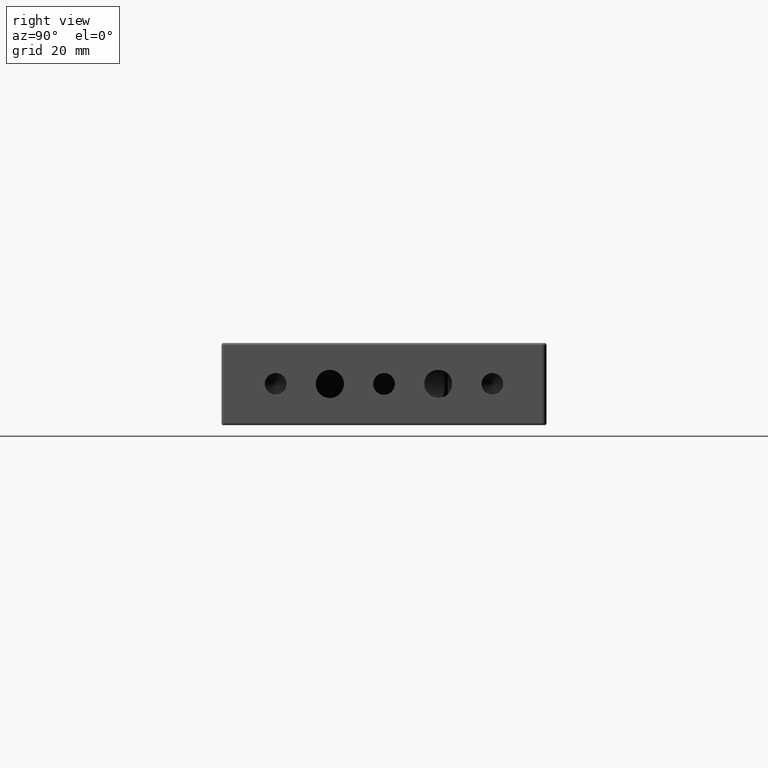
[diagram: clean part render]
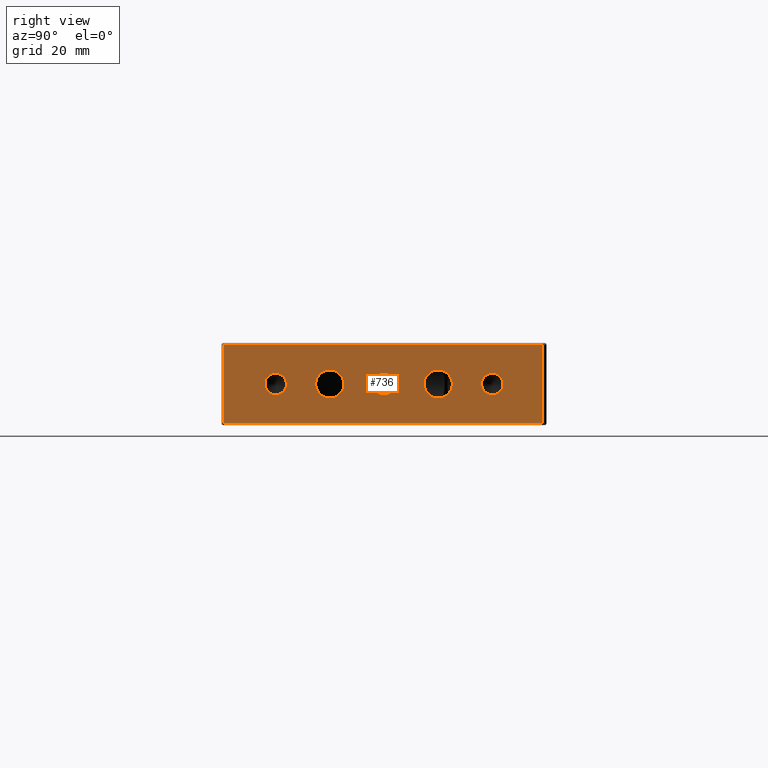
[diagram: same view with one face highlighted and labeled with its STEP entity id]
A machine part, right view. The second image highlights one B-rep face of the part: STEP entity #736.
In plain terms, the highlighted planar face has unit normal (-1, 0, 0).
Its self-contained STEP definition (entity closure, byte-faithful):
#125 = EDGE_CURVE ( 'NONE', #1267, #1266, #1376, .T. ) ;
#127 = EDGE_CURVE ( 'NONE', #1478, #1478, #922, .T. ) ;
#128 = EDGE_CURVE ( 'NONE', #1477, #1477, #919, .T. ) ;
#129 = EDGE_CURVE ( 'NONE', #1476, #1476, #918, .T. ) ;
#130 = EDGE_CURVE ( 'NONE', #1475, #1475, #917, .T. ) ;
#131 = EDGE_CURVE ( 'NONE', #1474, #1474, #916, .T. ) ;
#132 = EDGE_CURVE ( 'NONE', #1266, #1268, #920, .T. ) ;
#133 = EDGE_CURVE ( 'NONE', #1268, #1270, #921, .T. ) ;
#134 = EDGE_CURVE ( 'NONE', #1270, #1267, #913, .T. ) ;
#312 = DIRECTION ( 'NONE',  ( 0.0000000000000000000, 0.0000000000000000000, -1.000000000000000000 ) ) ;
#313 = DIRECTION ( 'NONE',  ( 1.000000000000000000, -0.0000000000000000000, -0.0000000000000000000 ) ) ;
#314 = CARTESIAN_POINT ( 'NONE',  ( 804.6671691626518200, 605.1374962495044700, 0.0000000000000000000 ) ) ;
#318 = CARTESIAN_POINT ( 'NONE',  ( 804.6671691626518200, 630.1374962495044700, 0.0000000000000000000 ) ) ;
#319 = CARTESIAN_POINT ( 'NONE',  ( 804.6671691626518200, 654.6374962495044700, -9.000000000000000000 ) ) ;
#321 = DIRECTION ( 'NONE',  ( -0.0000000000000000000, -0.0000000000000000000, -1.000000000000000000 ) ) ;
#322 = CARTESIAN_POINT ( 'NONE',  ( 804.6671691626518200, 580.6374962495044700, 9.500000000000000000 ) ) ;
#591 = DIRECTION ( 'NONE',  ( -1.000000000000000000, 0.0000000000000000000, 0.0000000000000000000 ) ) ;
#604 = PLANE ( 'NONE',  #665 ) ;
#605 = CARTESIAN_POINT ( 'NONE',  ( 804.6671691626518200, 654.6374962495044700, 9.500000000000000000 ) ) ;
#607 = DIRECTION ( 'NONE',  ( 0.0000000000000000000, 0.0000000000000000000, 1.000000000000000000 ) ) ;
#665 = AXIS2_PLACEMENT_3D ( 'NONE', #605, #591, #607 ) ;
#736 = ADVANCED_FACE ( 'NONE', ( #1661, #1657, #1660, #1658, #1659, #1656 ), #604, .F. ) ;
#810 = EDGE_LOOP ( 'NONE', ( #1160, #1159, #1158, #1157 ) ) ;
#911 = VECTOR ( 'NONE', #2088, 1000.000000000000000 ) ;
#913 = LINE ( 'NONE', #2079, #911 ) ;
#914 = VECTOR ( 'NONE', #2081, 1000.000000000000000 ) ;
#915 = VECTOR ( 'NONE', #2080, 1000.000000000000000 ) ;
#916 = CIRCLE ( 'NONE', #2021, 2.499999999999946700 ) ;
#917 = CIRCLE ( 'NONE', #2022, 2.499999999999946700 ) ;
#918 = CIRCLE ( 'NONE', #2023, 2.499999999999946700 ) ;
#919 = CIRCLE ( 'NONE', #2024, 3.249999999999975100 ) ;
#920 = LINE ( 'NONE', #319, #914 ) ;
#921 = LINE ( 'NONE', #2092, #915 ) ;
#922 = CIRCLE ( 'NONE', #2025, 3.249999999999975100 ) ;
#923 = VECTOR ( 'NONE', #321, 1000.000000000000000 ) ;
#1022 = EDGE_LOOP ( 'NONE', ( #1108 ) ) ;
#1108 = ORIENTED_EDGE ( 'NONE', *, *, #127, .F. ) ;
#1157 = ORIENTED_EDGE ( 'NONE', *, *, #134, .T. ) ;
#1158 = ORIENTED_EDGE ( 'NONE', *, *, #133, .T. ) ;
#1159 = ORIENTED_EDGE ( 'NONE', *, *, #132, .T. ) ;
#1160 = ORIENTED_EDGE ( 'NONE', *, *, #125, .T. ) ;
#1161 = ORIENTED_EDGE ( 'NONE', *, *, #131, .F. ) ;
#1162 = ORIENTED_EDGE ( 'NONE', *, *, #130, .F. ) ;
#1163 = ORIENTED_EDGE ( 'NONE', *, *, #129, .F. ) ;
#1164 = ORIENTED_EDGE ( 'NONE', *, *, #128, .F. ) ;
#1266 = VERTEX_POINT ( 'NONE', #1940 ) ;
#1267 = VERTEX_POINT ( 'NONE', #1941 ) ;
#1268 = VERTEX_POINT ( 'NONE', #1942 ) ;
#1270 = VERTEX_POINT ( 'NONE', #1944 ) ;
#1341 = EDGE_LOOP ( 'NONE', ( #1161 ) ) ;
#1356 = EDGE_LOOP ( 'NONE', ( #1162 ) ) ;
#1364 = EDGE_LOOP ( 'NONE', ( #1163 ) ) ;
#1376 = LINE ( 'NONE', #322, #923 ) ;
#1377 = EDGE_LOOP ( 'NONE', ( #1164 ) ) ;
#1474 = VERTEX_POINT ( 'NONE', #1773 ) ;
#1475 = VERTEX_POINT ( 'NONE', #1772 ) ;
#1476 = VERTEX_POINT ( 'NONE', #1771 ) ;
#1477 = VERTEX_POINT ( 'NONE', #1764 ) ;
#1478 = VERTEX_POINT ( 'NONE', #1770 ) ;
#1656 = FACE_OUTER_BOUND ( 'NONE', #810, .T. ) ;
#1657 = FACE_BOUND ( 'NONE', #1377, .T. ) ;
#1658 = FACE_BOUND ( 'NONE', #1356, .T. ) ;
#1659 = FACE_BOUND ( 'NONE', #1341, .T. ) ;
#1660 = FACE_BOUND ( 'NONE', #1364, .T. ) ;
#1661 = FACE_BOUND ( 'NONE', #1022, .T. ) ;
#1764 = CARTESIAN_POINT ( 'NONE',  ( 804.6671691626518200, 630.1374962495044700, -3.249999999999975100 ) ) ;
#1770 = CARTESIAN_POINT ( 'NONE',  ( 804.6671691626518200, 605.1374962495044700, -3.249999999999975100 ) ) ;
#1771 = CARTESIAN_POINT ( 'NONE',  ( 804.6671691626518200, 642.6374962495044700, -2.499999999999946700 ) ) ;
#1772 = CARTESIAN_POINT ( 'NONE',  ( 804.6671691626518200, 617.6374962495044700, -2.499999999999946700 ) ) ;
#1773 = CARTESIAN_POINT ( 'NONE',  ( 804.6671691626518200, 592.6374962495044700, -2.499999999999946700 ) ) ;
#1940 = CARTESIAN_POINT ( 'NONE',  ( 804.6671691626518200, 580.6374962495044700, -9.000000000000000000 ) ) ;
#1941 = CARTESIAN_POINT ( 'NONE',  ( 804.6671691626518200, 580.6374962495044700, 9.000000000000000000 ) ) ;
#1942 = CARTESIAN_POINT ( 'NONE',  ( 804.6671691626518200, 654.1374962495044700, -9.000000000000000000 ) ) ;
#1944 = CARTESIAN_POINT ( 'NONE',  ( 804.6671691626518200, 654.1374962495044700, 9.000000000000000000 ) ) ;
#2021 = AXIS2_PLACEMENT_3D ( 'NONE', #2084, #2083, #2082 ) ;
#2022 = AXIS2_PLACEMENT_3D ( 'NONE', #2087, #2086, #2085 ) ;
#2023 = AXIS2_PLACEMENT_3D ( 'NONE', #2091, #2090, #2089 ) ;
#2024 = AXIS2_PLACEMENT_3D ( 'NONE', #318, #2094, #2093 ) ;
#2025 = AXIS2_PLACEMENT_3D ( 'NONE', #314, #313, #312 ) ;
#2079 = CARTESIAN_POINT ( 'NONE',  ( 804.6671691626518200, 580.6374962495044700, 9.000000000000000000 ) ) ;
#2080 = DIRECTION ( 'NONE',  ( -0.0000000000000000000, -0.0000000000000000000, 1.000000000000000000 ) ) ;
#2081 = DIRECTION ( 'NONE',  ( 0.0000000000000000000, 1.000000000000000000, 0.0000000000000000000 ) ) ;
#2082 = DIRECTION ( 'NONE',  ( 0.0000000000000000000, 0.0000000000000000000, -1.000000000000000000 ) ) ;
#2083 = DIRECTION ( 'NONE',  ( 1.000000000000000000, -0.0000000000000000000, -0.0000000000000000000 ) ) ;
#2084 = CARTESIAN_POINT ( 'NONE',  ( 804.6671691626518200, 592.6374962495044700, 0.0000000000000000000 ) ) ;
#2085 = DIRECTION ( 'NONE',  ( 0.0000000000000000000, 0.0000000000000000000, -1.000000000000000000 ) ) ;
#2086 = DIRECTION ( 'NONE',  ( 1.000000000000000000, -0.0000000000000000000, -0.0000000000000000000 ) ) ;
#2087 = CARTESIAN_POINT ( 'NONE',  ( 804.6671691626518200, 617.6374962495044700, 0.0000000000000000000 ) ) ;
#2088 = DIRECTION ( 'NONE',  ( -0.0000000000000000000, -1.000000000000000000, -0.0000000000000000000 ) ) ;
#2089 = DIRECTION ( 'NONE',  ( 0.0000000000000000000, 0.0000000000000000000, -1.000000000000000000 ) ) ;
#2090 = DIRECTION ( 'NONE',  ( 1.000000000000000000, -0.0000000000000000000, -0.0000000000000000000 ) ) ;
#2091 = CARTESIAN_POINT ( 'NONE',  ( 804.6671691626518200, 642.6374962495044700, 0.0000000000000000000 ) ) ;
#2092 = CARTESIAN_POINT ( 'NONE',  ( 804.6671691626518200, 654.1374962495044700, 9.500000000000000000 ) ) ;
#2093 = DIRECTION ( 'NONE',  ( 0.0000000000000000000, 0.0000000000000000000, -1.000000000000000000 ) ) ;
#2094 = DIRECTION ( 'NONE',  ( 1.000000000000000000, -0.0000000000000000000, -0.0000000000000000000 ) ) ;